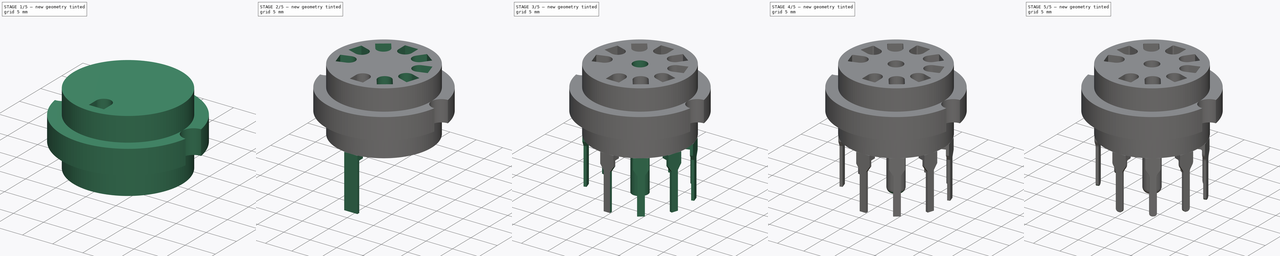
[diagram: build sequence overview — one tinted view per stage of 5, left to right]
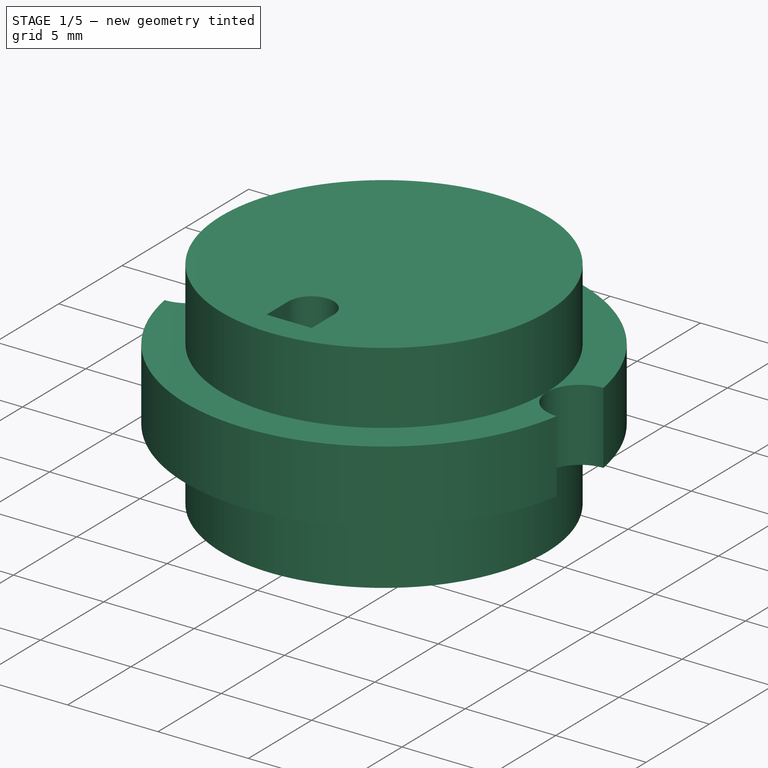
[diagram: stage 1 of 5 — iso view after this stage's code; geometry added in this stage tinted green]
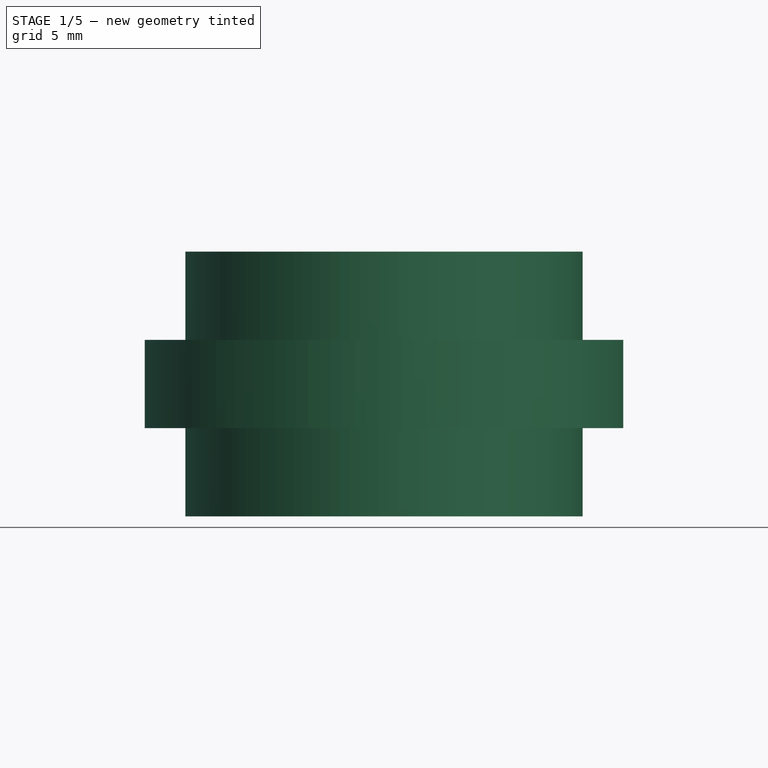
[diagram: stage 1 of 5 — front view after this stage's code; geometry added in this stage tinted green]
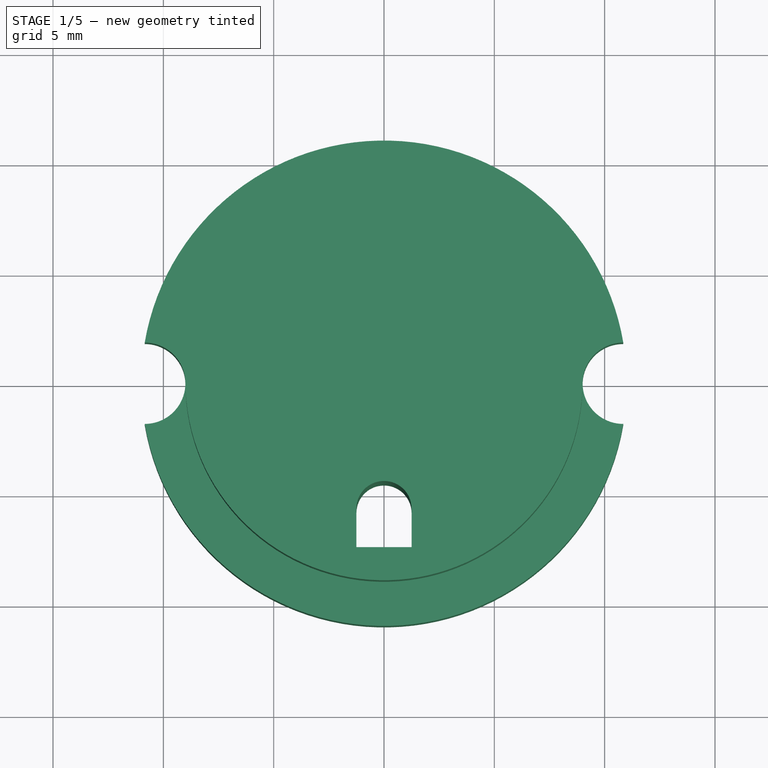
[diagram: stage 1 of 5 — top view after this stage's code; geometry added in this stage tinted green]
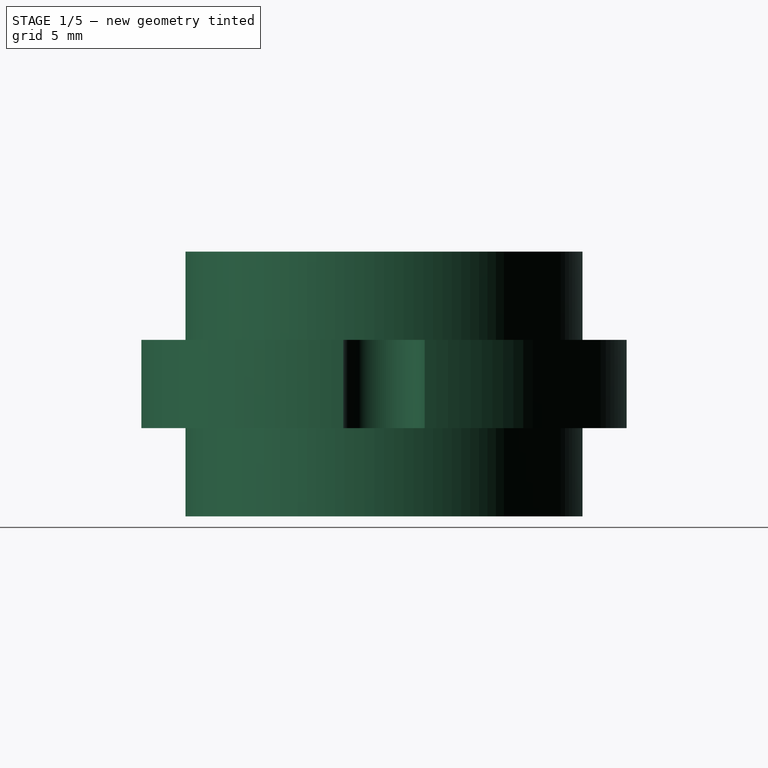
[diagram: stage 1 of 5 — right view after this stage's code; geometry added in this stage tinted green]
FCSTD DOCUMENT  (FreeCAD 0.19R)
Label: PL9-3P
License: All rights reserved
LicenseURL: http://en.wikipedia.org/wiki/All_rights_reserved
objects: Sketcher::SketchObject×9, PartDesign::Fillet×6, PartDesign::Pad×5, PartDesign::Pocket×4, PartDesign::PolarPattern×2, PartDesign::Body×2, PartDesign::Boolean×1
note: 44 computed .brp shape members not serialized (recipe doc carries the construction recipe); baked Part::Feature solids carry a one-line shape summary decoded from their .brp

FEATURE [Sketcher::SketchObject] Sketch
  FullyConstrained = true
  MapMode = 5
  Support = -> [XY_Plane]
  sketch-geometry (5):
    g0: Circle CenterX=0 CenterY=0 CenterZ=0 NormalX=0 NormalY=0 NormalZ=1 AngleXU=0 Radius=9
    g1: ArcOfCircle CenterX=-10.8443 CenterY=0 CenterZ=0 NormalX=0 NormalY=0 NormalZ=1 AngleXU=0 Radius=1.84429 StartAngle=4.71239 EndAngle=7.85398
    g2: ArcOfCircle CenterX=10.8443 CenterY=0 CenterZ=0 NormalX=0 NormalY=0 NormalZ=1 AngleXU=0 Radius=1.84429 StartAngle=1.5708 EndAngle=4.71239
    g3: ArcOfCircle CenterX=0 CenterY=0 CenterZ=0 NormalX=0 NormalY=0 NormalZ=1 AngleXU=0 Radius=11 StartAngle=0.168458 EndAngle=2.97313
    g4: ArcOfCircle CenterX=0 CenterY=0 CenterZ=0 NormalX=0 NormalY=0 NormalZ=1 AngleXU=0 Radius=11 StartAngle=3.31005 EndAngle=6.11473
  constraints (16):
    c: PointOnObject(g1,g-1)
    c: PointOnObject(g2,g-1)
    c: Coincident(g3,g-1)
    c: Coincident(g4,g3)
    c: Coincident(g4,g1)
    c: Coincident(g4,g2)
    c: Coincident(g2,g3)
    c: Coincident(g1,g3)
    c: Tangent(g0,g1)
    c: Tangent(g2,g0)
    c: Coincident(g0,g3)
    c: Diameter(g0) = 18
    c: Diameter(g3) = 22
    c: Equal(g3,g4)
    c: Vertical(g1,g1)
    c: Vertical(g2,g2)
FEATURE [PartDesign::Pad] Pad
  Direction = (1,1,1)
  Length = 4
  Length2 = 100
  Profile = -> Sketch
  Type = 0
FEATURE [Sketcher::SketchObject] Sketch001
  FullyConstrained = true
  MapMode = 5
  Placement = pos=(0,0,4) rot=(0,0,1;0rad)
  Support = -> [Pad]
  sketch-geometry (1):
    g0: Circle CenterX=0 CenterY=0 CenterZ=0 NormalX=0 NormalY=0 NormalZ=1 AngleXU=0 Radius=9
  constraints (2):
    c: Coincident(g0,g-1)
    c: Diameter(g0) = 18
FEATURE [PartDesign::Pad] Pad001
  BaseFeature = -> Pad
  Direction = (1,1,1)
  Length = 4
  Length2 = 100
  Profile = -> Sketch001
  Type = 0
FEATURE [Sketcher::SketchObject] Sketch002
  FullyConstrained = true
  MapMode = 5
  Placement = pos=(0,0,0) rot=(1,0,0;3.14159rad)
  Support = -> [Pad001]
  sketch-geometry (1):
    g0: Circle CenterX=0 CenterY=0 CenterZ=0 NormalX=0 NormalY=0 NormalZ=1 AngleXU=0 Radius=9
  constraints (2):
    c: Coincident(g0,g-1)
    c: Diameter(g0) = 18
FEATURE [PartDesign::Pad] Pad002
  BaseFeature = -> Pad001
  Direction = (1,1,1)
  Length = 4
  Length2 = 100
  Profile = -> Sketch002
  Type = 0
FEATURE [Sketcher::SketchObject] Sketch003
  FullyConstrained = true
  MapMode = 5
  Placement = pos=(0,0,8) rot=(0,0,1;0rad)
  Support = -> [Pad002]
  sketch-geometry (5):
    g0: ArcOfCircle CenterX=0 CenterY=-5.75 CenterZ=0 NormalX=0 NormalY=0 NormalZ=1 AngleXU=0 Radius=1.25 StartAngle=6.28319 EndAngle=9.42478
    g1: LineSegment StartX=-1.25 StartY=-5.75 StartZ=0 EndX=-1.25 EndY=-7.5 EndZ=0
    g2: LineSegment StartX=-1.25 StartY=-7.5 StartZ=0 EndX=1.25 EndY=-7.5 EndZ=0
    g3: LineSegment StartX=1.25 StartY=-7.5 StartZ=0 EndX=1.25 EndY=-5.75 EndZ=0
    g4: GeomPoint X=0 Y=-4.5 Z=0
  constraints (14):
    c: PointOnObject(g0,g-2)
    c: Vertical(g1)
    c: Coincident(g1,g2)
    c: Coincident(g2,g3)
    c: Vertical(g3)
    c: Symmetric(g2,g1,g-2)
    c: Coincident(g3,g0)
    c: Coincident(g1,g0)
    c: Horizontal(g0,g0)
    c: PointOnObject(g4,g-2)
    c: PointOnObject(g4,g0)
    c: DistanceX(g2,g2) = 2.5
    c: DistanceY(g2,g4) = 3
    c: DistanceY(g2,g-1) = 7.5
FEATURE [PartDesign::Pocket] Pocket
  BaseFeature = -> Pad002
  Length = 5
  Length2 = 100
  Profile = -> Sketch003
  Refine = true
  Type = 1
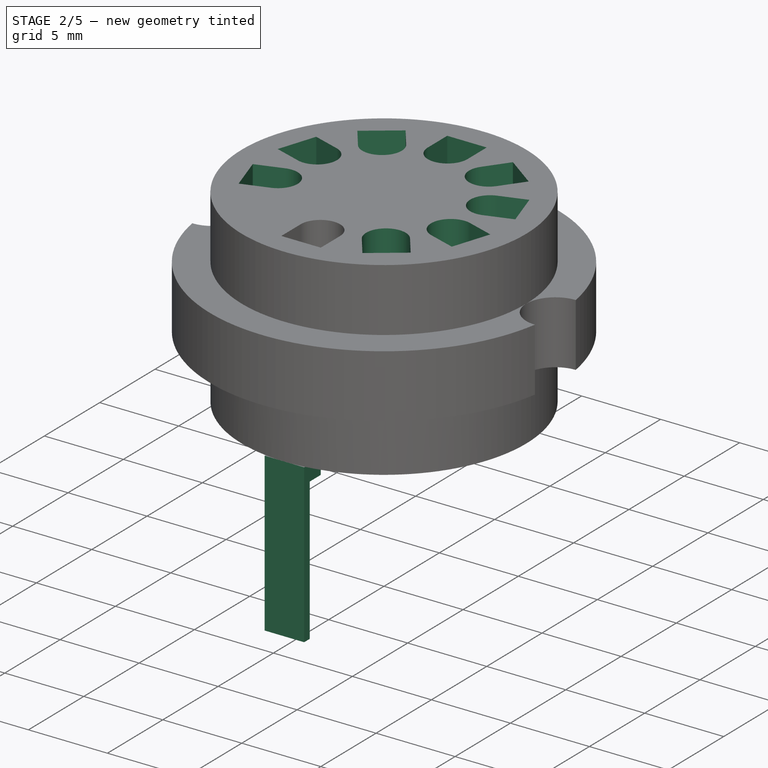
[diagram: stage 2 of 5 — iso view after this stage's code; geometry added in this stage tinted green]
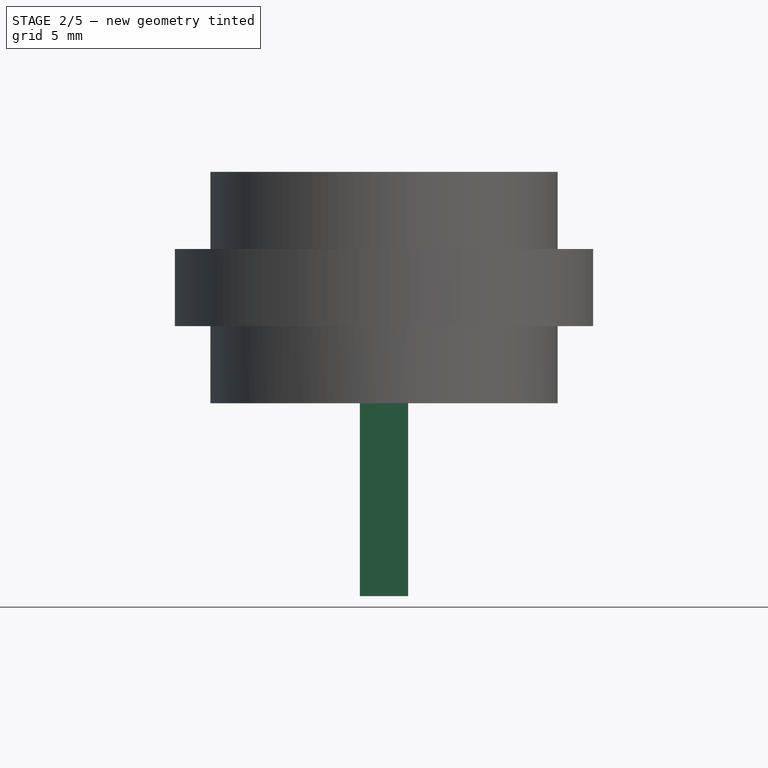
[diagram: stage 2 of 5 — front view after this stage's code; geometry added in this stage tinted green]
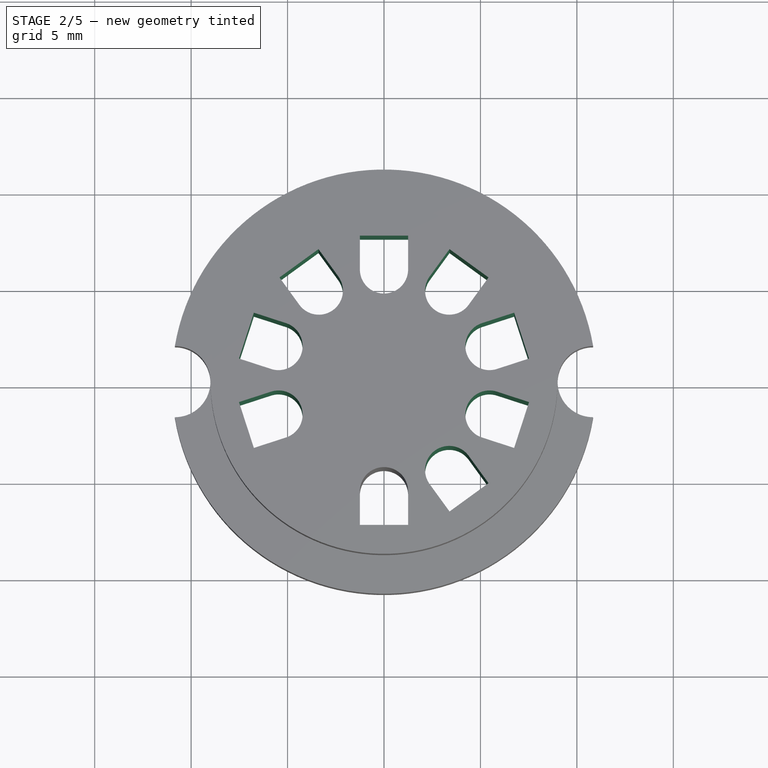
[diagram: stage 2 of 5 — top view after this stage's code; geometry added in this stage tinted green]
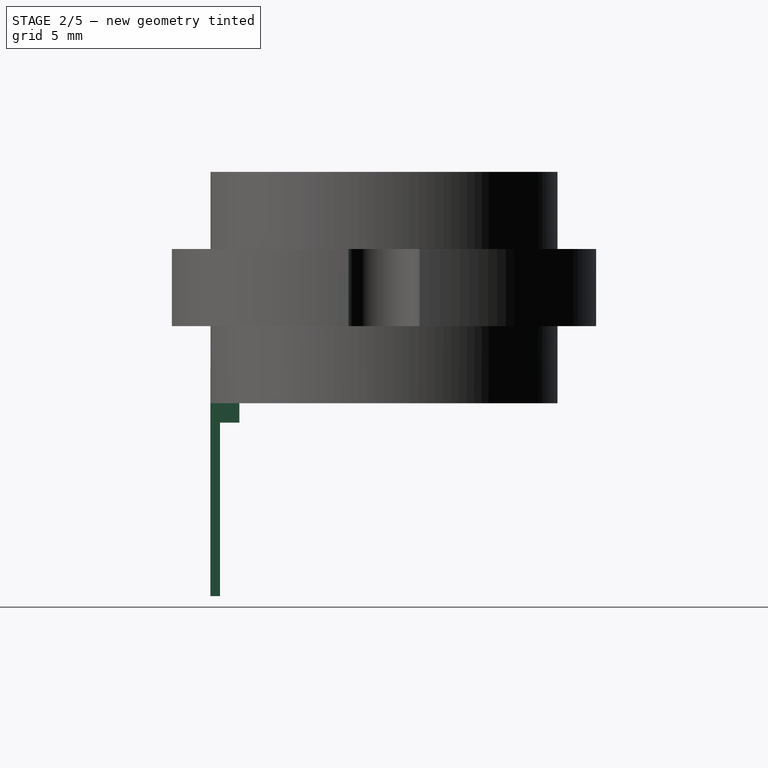
[diagram: stage 2 of 5 — right view after this stage's code; geometry added in this stage tinted green]
FEATURE [PartDesign::PolarPattern] PolarPattern
  Angle = 288
  Axis = -> Sketch003 [N_Axis]
  BaseFeature = -> Pocket
  Occurrences = 9
  Originals = -> [Pocket]
FEATURE [Sketcher::SketchObject] Sketch004
  FullyConstrained = true
  MapMode = 5
  Placement = pos=(0,0,-4) rot=(1,0,0;3.14159rad)
  Support = -> [PolarPattern]
  sketch-geometry (4):
    g0: LineSegment StartX=-1.25 StartY=9 StartZ=0 EndX=1.25 EndY=9 EndZ=0
    g1: LineSegment StartX=1.25 StartY=9 StartZ=0 EndX=1.25 EndY=7.5 EndZ=0
    g2: LineSegment StartX=1.25 StartY=7.5 StartZ=0 EndX=-1.25 EndY=7.5 EndZ=0
    g3: LineSegment StartX=-1.25 StartY=7.5 StartZ=0 EndX=-1.25 EndY=9 EndZ=0
  constraints (11):
    c: Coincident(g0,g1)
    c: Coincident(g1,g2)
    c: Coincident(g2,g3)
    c: Coincident(g3,g0)
    c: Horizontal(g0)
    c: Vertical(g1)
    c: Vertical(g3)
    c: Symmetric(g2,g1,g-2)
    c: DistanceX(g0,g0) = 2.5
    c: DistanceY(g-1,g1) = 7.5
    c: DistanceY(g-1,g0) = 9
FEATURE [PartDesign::Pad] Pad003
  BaseFeature = -> PolarPattern
  Direction = (1,1,1)
  Length = 10
  Length2 = 100
  Profile = -> Sketch004
  Type = 0
FEATURE [Sketcher::SketchObject] Sketch005
  FullyConstrained = true
  MapMode = 5
  Placement = pos=(-1.25,0,0) rot=(0.57735,-0.57735,-0.57735;2.0944rad)
  Support = -> [Pad003]
  sketch-geometry (4):
    g0: LineSegment StartX=7.5 StartY=-5 StartZ=0 EndX=8.5 EndY=-5 EndZ=0
    g1: LineSegment StartX=8.5 StartY=-5 StartZ=0 EndX=8.5 EndY=-14 EndZ=0
    g2: LineSegment StartX=8.5 StartY=-14 StartZ=0 EndX=7.5 EndY=-14 EndZ=0
    g3: LineSegment StartX=7.5 StartY=-14 StartZ=0 EndX=7.5 EndY=-5 EndZ=0
  constraints (12):
    c: Coincident(g0,g1)
    c: Coincident(g1,g2)
    c: Coincident(g2,g3)
    c: Coincident(g3,g0)
    c: Horizontal(g0)
    c: Horizontal(g2)
    c: Vertical(g1)
    c: Vertical(g3)
    c: DistanceY(g2,g-1) = 14
    c: DistanceY(g1,g1) = 9
    c: DistanceX(g-1,g0) = 7.5
    c: DistanceX(g-1,g0) = 8.5
FEATURE [PartDesign::Pocket] Pocket001
  BaseFeature = -> Pad003
  Length = 5
  Length2 = 100
  Profile = -> Sketch005
  Type = 0
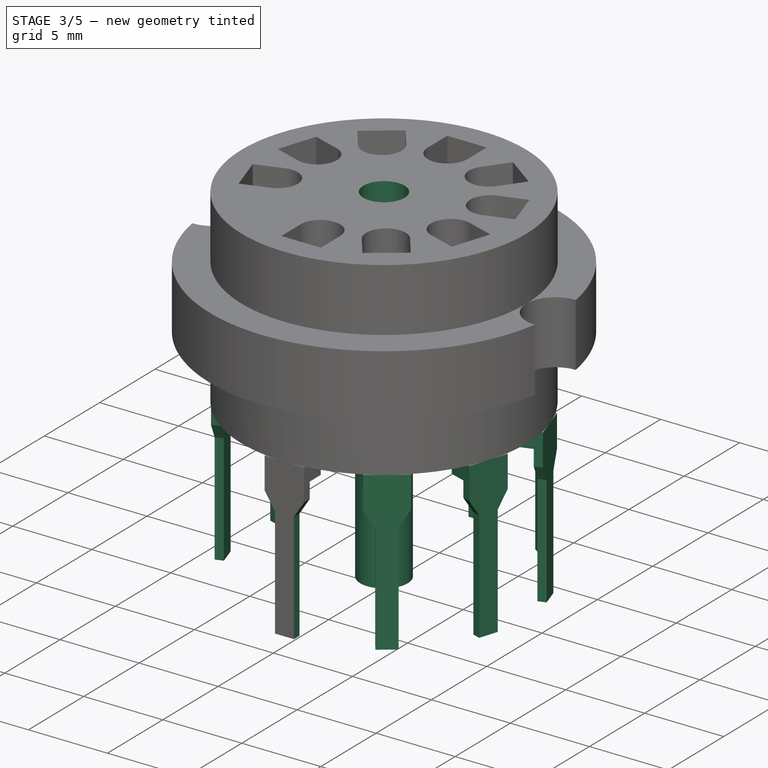
[diagram: stage 3 of 5 — iso view after this stage's code; geometry added in this stage tinted green]
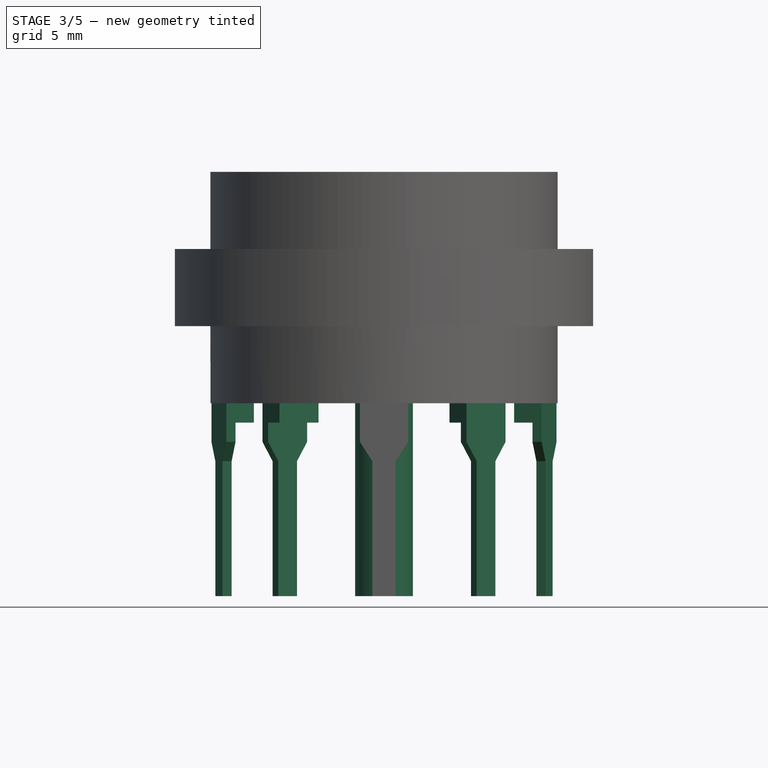
[diagram: stage 3 of 5 — front view after this stage's code; geometry added in this stage tinted green]
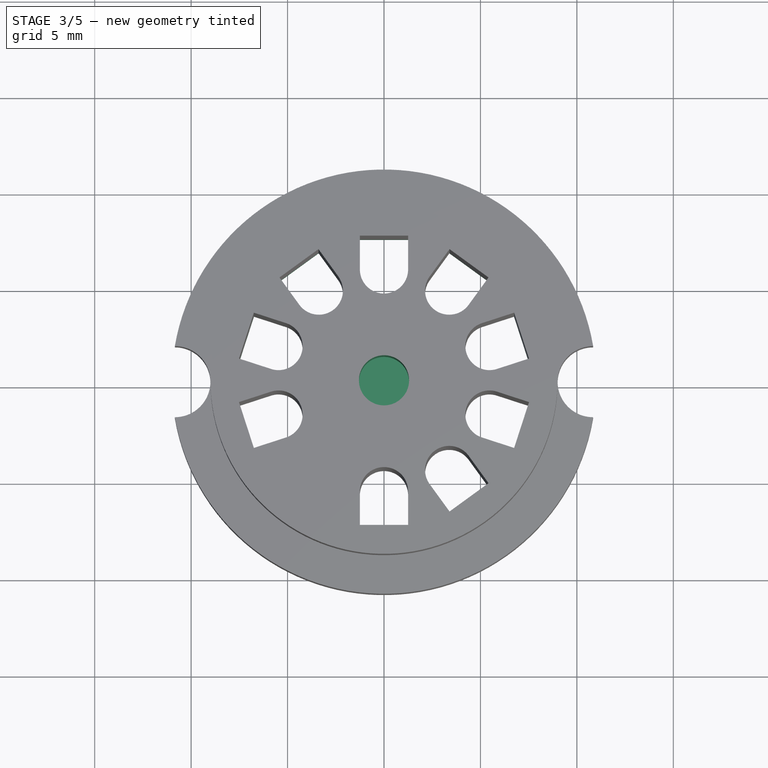
[diagram: stage 3 of 5 — top view after this stage's code; geometry added in this stage tinted green]
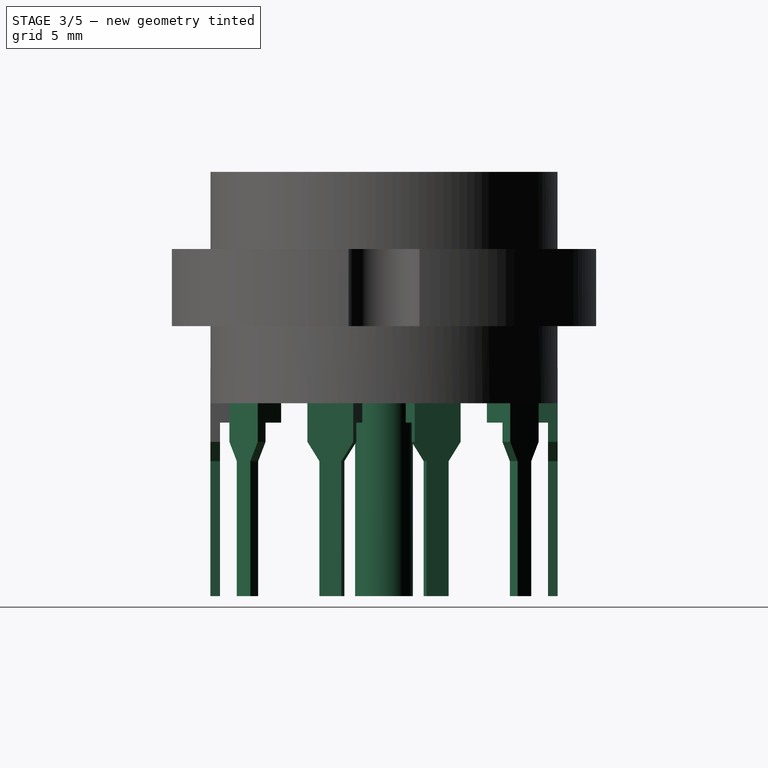
[diagram: stage 3 of 5 — right view after this stage's code; geometry added in this stage tinted green]
FEATURE [Sketcher::SketchObject] Sketch006
  FullyConstrained = true
  MapMode = 5
  Placement = pos=(0,-9,0) rot=(1,0,0;1.5708rad)
  Support = -> [Pocket001]
  sketch-geometry (8):
    g0: LineSegment StartX=-0.6 StartY=-14 StartZ=0 EndX=-0.6 EndY=-7 EndZ=0
    g1: LineSegment StartX=-0.6 StartY=-7 StartZ=0 EndX=-1.25 EndY=-6 EndZ=0
    g2: LineSegment StartX=-1.25 StartY=-6 StartZ=0 EndX=-1.25 EndY=-14 EndZ=0
    g3: LineSegment StartX=-1.25 StartY=-14 StartZ=0 EndX=-0.6 EndY=-14 EndZ=0
    g4: LineSegment StartX=0.6 StartY=-14 StartZ=0 EndX=0.6 EndY=-7 EndZ=0
    g5: LineSegment StartX=0.6 StartY=-7 StartZ=0 EndX=1.25 EndY=-6 EndZ=0
    g6: LineSegment StartX=1.25 StartY=-6 StartZ=0 EndX=1.25 EndY=-14 EndZ=0
    g7: LineSegment StartX=1.25 StartY=-14 StartZ=0 EndX=0.6 EndY=-14 EndZ=0
  constraints (22):
    c: Vertical(g0)
    c: Coincident(g0,g1)
    c: Coincident(g1,g2)
    c: Vertical(g2)
    c: Coincident(g2,g3)
    c: Coincident(g3,g0)
    c: Vertical(g4)
    c: Coincident(g4,g5)
    c: Coincident(g5,g6)
    c: Vertical(g6)
    c: Coincident(g6,g7)
    c: Coincident(g7,g4)
    c: Horizontal(g7)
    c: Horizontal(g3)
    c: Symmetric(g0,g4,g-2)
    c: Symmetric(g1,g5,g-2)
    c: Equal(g0,g4)
    c: DistanceX(g0,g4) = 1.2
    c: DistanceX(g2,g6) = 2.5
    c: DistanceY(g2,g-1) = 14
    c: DistanceY(g1,g-1) = 6
    c: DistanceY(g0,g1) = 1
FEATURE [PartDesign::Pocket] Pocket002
  BaseFeature = -> Pocket001
  Length = 5
  Length2 = 100
  Profile = -> Sketch006
  Type = 0
FEATURE [PartDesign::PolarPattern] PolarPattern001
  Angle = 288
  Axis = -> Sketch004 [N_Axis]
  BaseFeature = -> Pocket002
  Occurrences = 9
  Originals = -> [Pad003,Pocket001,Pocket002]
  Reversed = true
FEATURE [Sketcher::SketchObject] Sketch007
  FullyConstrained = true
  MapMode = 5
  Placement = pos=(0,0,-4) rot=(1,0,0;3.14159rad)
  Support = -> [PolarPattern001]
  sketch-geometry (1):
    g0: Circle CenterX=0 CenterY=0 CenterZ=0 NormalX=0 NormalY=0 NormalZ=1 AngleXU=0 Radius=1.5
  constraints (2):
    c: Coincident(g0,g-1)
    c: Diameter(g0) = 3
FEATURE [PartDesign::Pad] Pad004
  BaseFeature = -> PolarPattern001
  Direction = (1,1,1)
  Length = 10
  Length2 = 100
  Profile = -> Sketch007
  Type = 0
FEATURE [Sketcher::SketchObject] Sketch008
  FullyConstrained = true
  MapMode = 5
  Placement = pos=(0,0,8) rot=(0,0,1;0rad)
  Support = -> [Pad004]
  sketch-geometry (1):
    g0: Circle CenterX=0 CenterY=0 CenterZ=0 NormalX=0 NormalY=0 NormalZ=1 AngleXU=0 Radius=1.3
  constraints (2):
    c: Coincident(g0,g-1)
    c: Diameter(g0) = 2.6
FEATURE [PartDesign::Pocket] Pocket003
  BaseFeature = -> Pad004
  Length = 5
  Length2 = 100
  Profile = -> Sketch008
  Type = 0
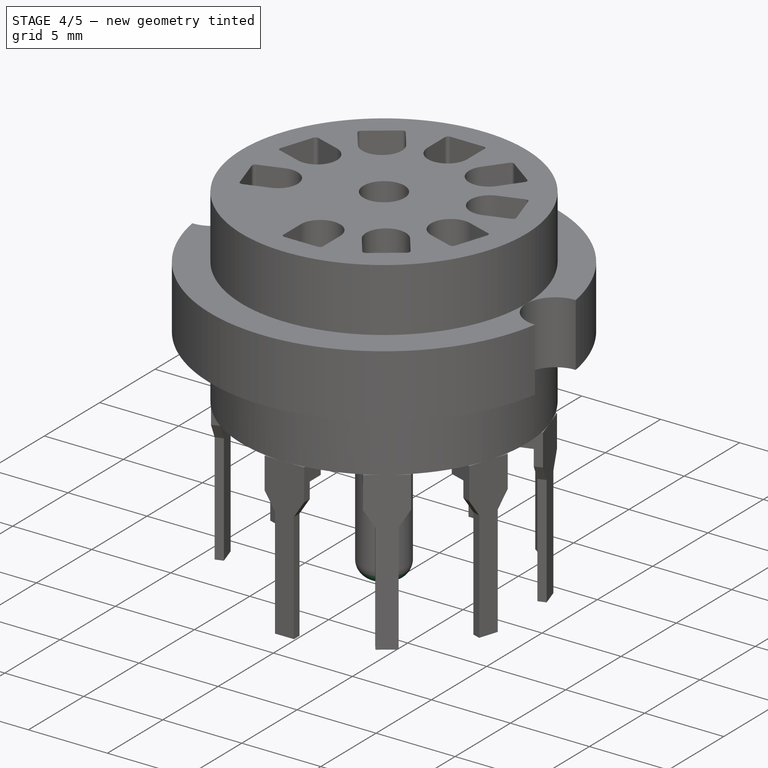
[diagram: stage 4 of 5 — iso view after this stage's code; geometry added in this stage tinted green]
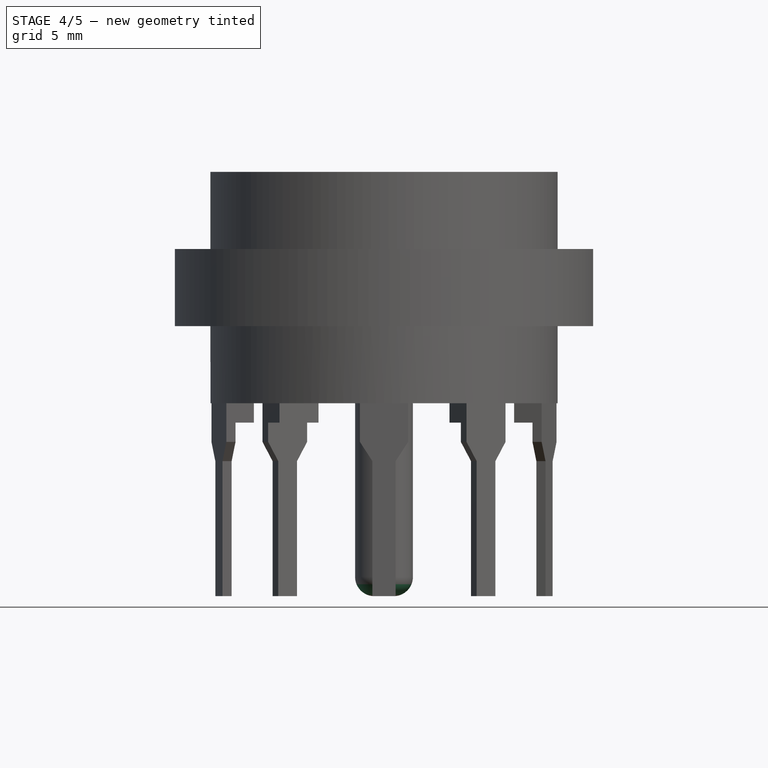
[diagram: stage 4 of 5 — front view after this stage's code; geometry added in this stage tinted green]
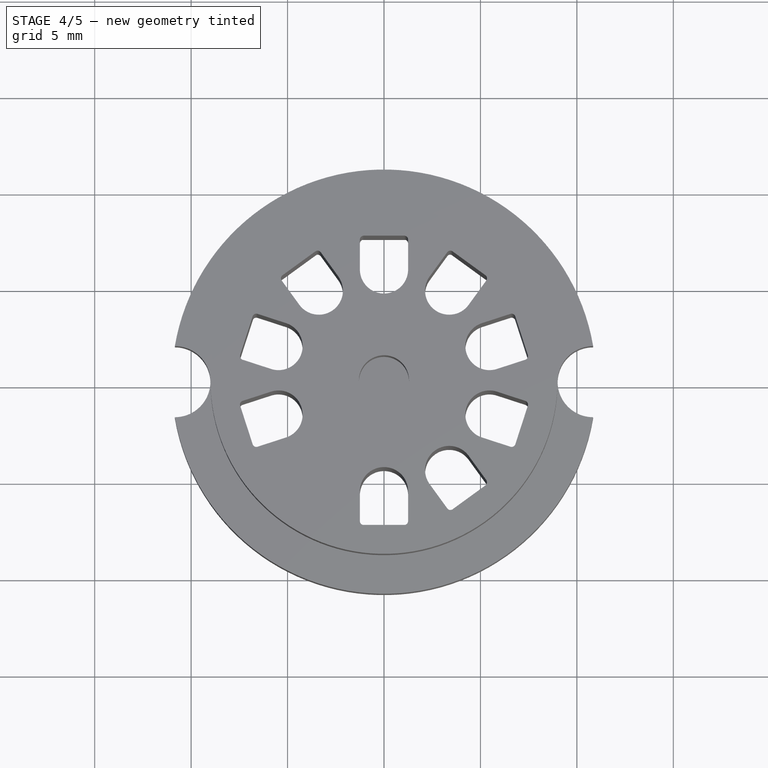
[diagram: stage 4 of 5 — top view after this stage's code; geometry added in this stage tinted green]
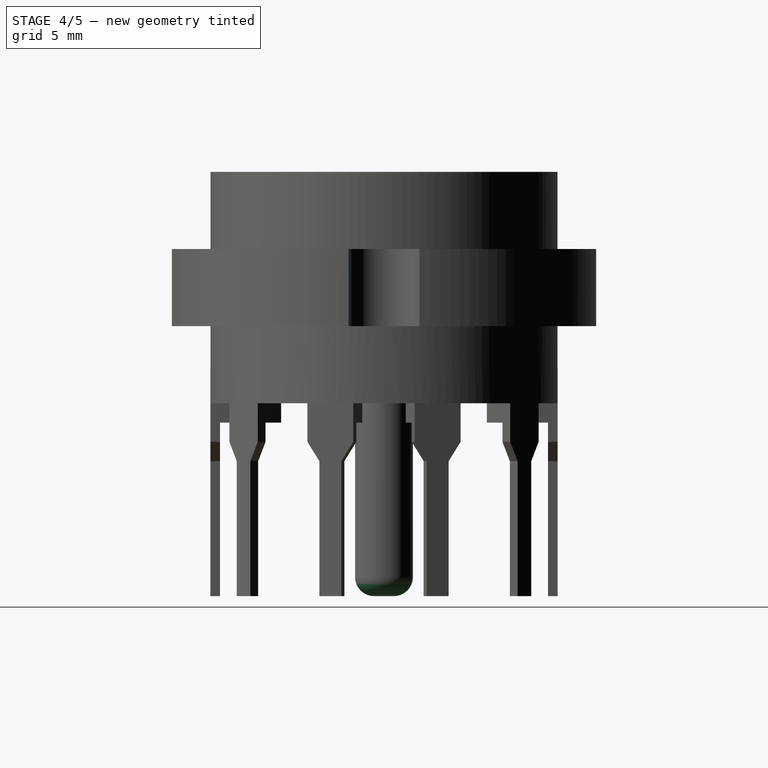
[diagram: stage 4 of 5 — right view after this stage's code; geometry added in this stage tinted green]
FEATURE [PartDesign::Body] Body
  Group = -> [Sketch,Pad,Sketch001,Pad001,Sketch002,Pad002,Sketch003,Pocket,PolarPattern,Sketch004,Pad003,Sketch005,Pocket001,Sketch006,Pocket002,PolarPattern001,Sketch007,Pad004,Sketch008,Pocket003]
  Origin = -> Origin
  Tip = -> Pocket003
FEATURE [PartDesign::Boolean] Boolean
  Group = -> [Body]
  Refine = true
  Type = 0
FEATURE [PartDesign::Fillet] Fillet
  Base = -> Boolean [Edge207,Edge199,Edge179,Edge171,Edge191,Edge198,Edge219,Edge226,Edge247,Edge249,Edge270,Edge277,Edge296,Edge288,Edge268,Edge260,Edge227,Edge235]
  BaseFeature = -> Boolean
  Radius = 0.2
  SupportTransform = false
FEATURE [PartDesign::Fillet] Fillet001
  Base = -> Fillet [Edge340]
  BaseFeature = -> Fillet
  Radius = 1
  SupportTransform = false
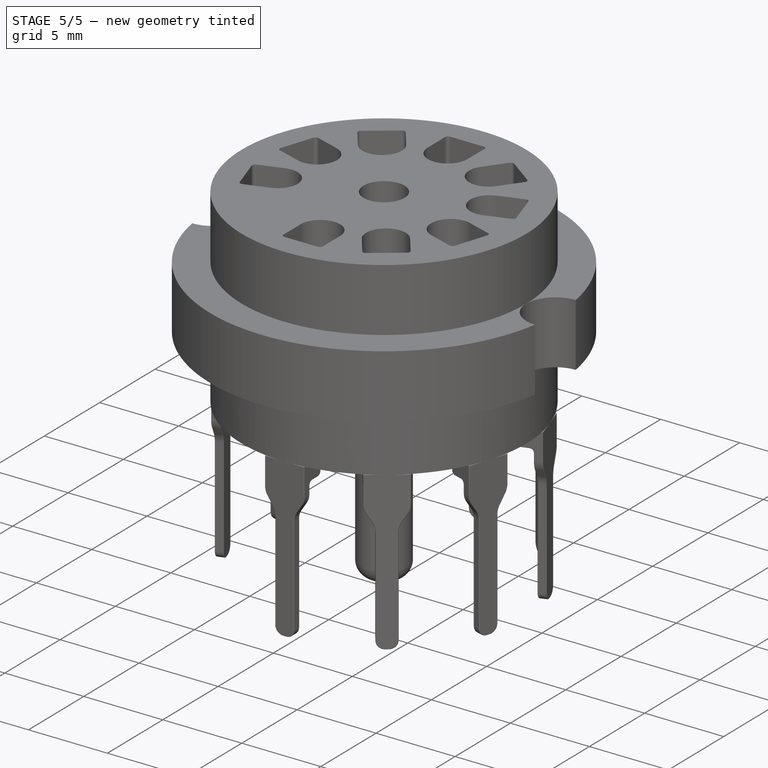
[diagram: stage 5 of 5 — iso view after this stage's code; geometry added in this stage tinted green]
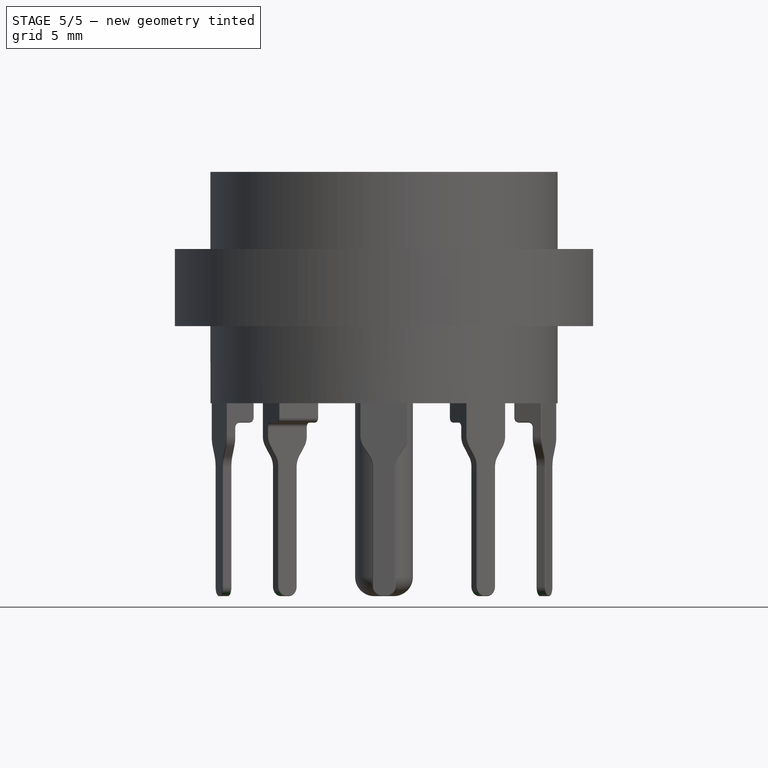
[diagram: stage 5 of 5 — front view after this stage's code; geometry added in this stage tinted green]
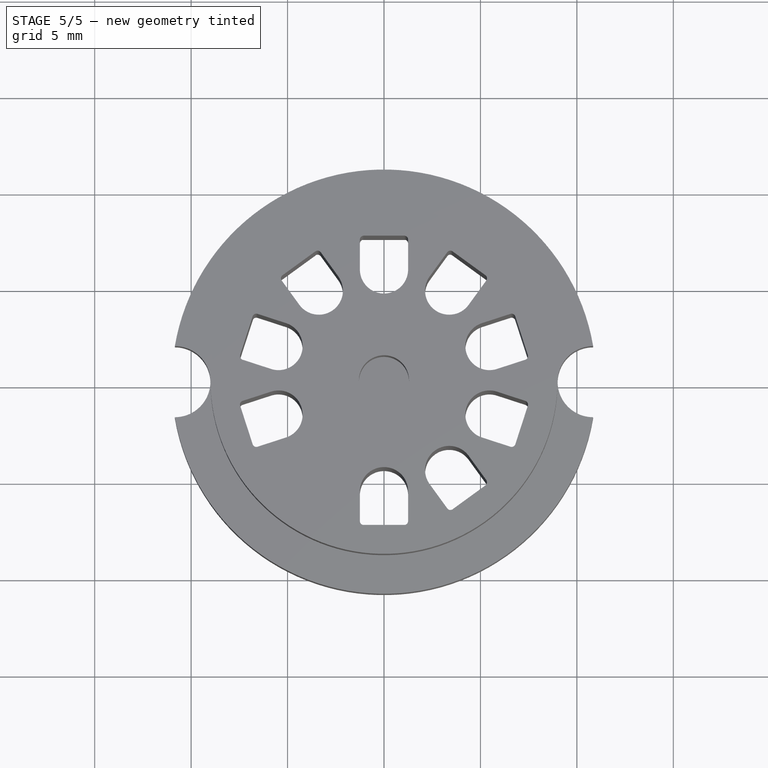
[diagram: stage 5 of 5 — top view after this stage's code; geometry added in this stage tinted green]
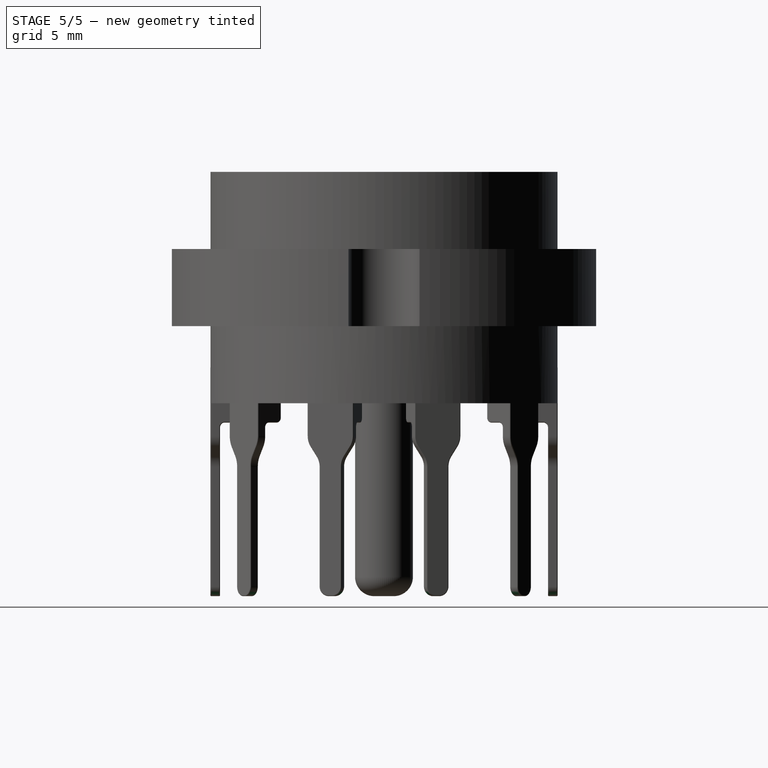
[diagram: stage 5 of 5 — right view after this stage's code; geometry added in this stage tinted green]
FEATURE [PartDesign::Fillet] Fillet002
  Base = -> Fillet001 [Edge492,Edge491,Edge506,Edge505,Edge510,Edge509,Edge514,Edge513,Edge504,Edge503,Edge508,Edge507,Edge512,Edge511,Edge516,Edge515,Edge517,Edge518]
  BaseFeature = -> Fillet001
  Radius = 0.5
  SupportTransform = false
FEATURE [PartDesign::Fillet] Fillet003
  Base = -> Fillet002 [Edge172,Edge388,Edge133,Edge39,Edge187,Edge417,Edge421,Edge222,Edge451,Edge237,Edge485,Edge289,Edge519,Edge339,Edge489,Edge317,Edge455,Edge272]
  BaseFeature = -> Fillet002
  Radius = 0.25
  SupportTransform = false
FEATURE [PartDesign::Fillet] Fillet004
  Base = -> Fillet003 [Edge247,Edge467,Edge220,Edge448,Edge132,Edge403,Edge131,Edge9,Edge459,Edge228,Edge486,Edge266,Edge497,Edge274,Edge524,Edge312,Edge535,Edge321,Edge562,Edge362,Edge573,Edge367,Edge396,Edge582,Edge581,Edge384,Edge351,Edge561,Edge543,Edge338,Edge523,Edge305,Edge293,Edge505,Edge259,Edge485]
  BaseFeature = -> Fillet003
  Radius = 1
  SupportTransform = false
FEATURE [PartDesign::Fillet] Fillet005
  Base = -> Fillet004 [Edge231,Edge237,Edge226,Edge227,Edge289,Edge295,Edge602,Edge617,Edge410,Edge405,Edge590,Edge578,Edge536,Edge524,Edge21,Edge30,Edge488,Edge466]
  BaseFeature = -> Fillet004
  Radius = 0.05
  SupportTransform = false
FEATURE [PartDesign::Body] Body001
  Group = -> [Boolean,Fillet,Fillet001,Fillet002,Fillet003,Fillet004,Fillet005]
  Origin = -> Origin001
  Tip = -> Fillet005
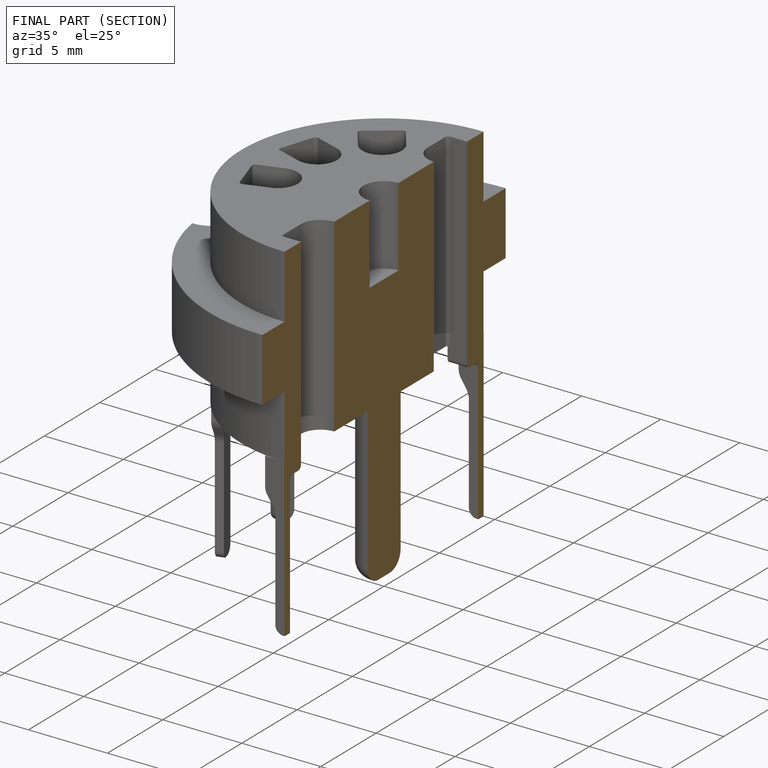
[diagram: finished part — half-section view (interior)]
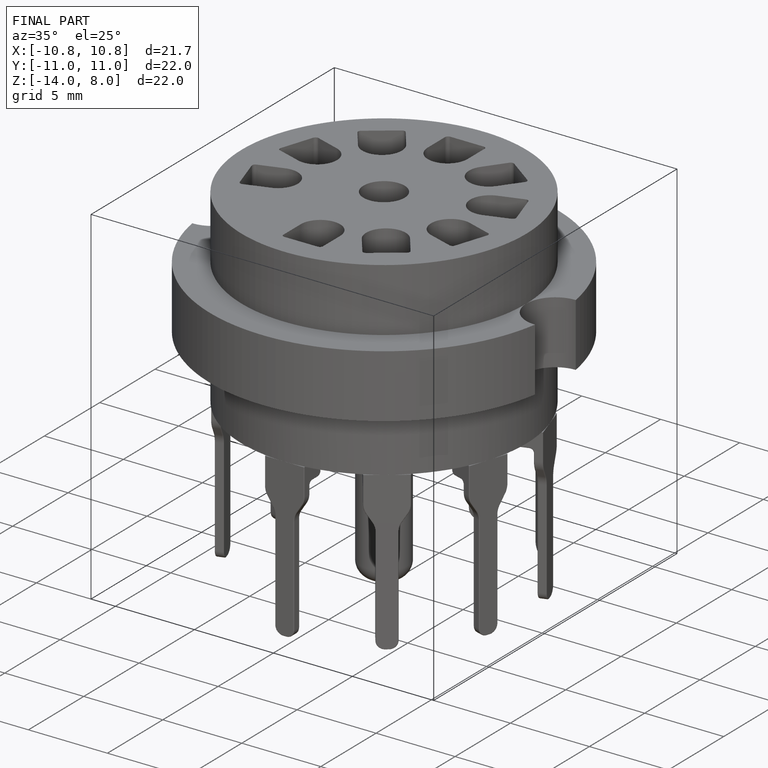
[diagram: finished part — iso view with bounding-box wireframe]
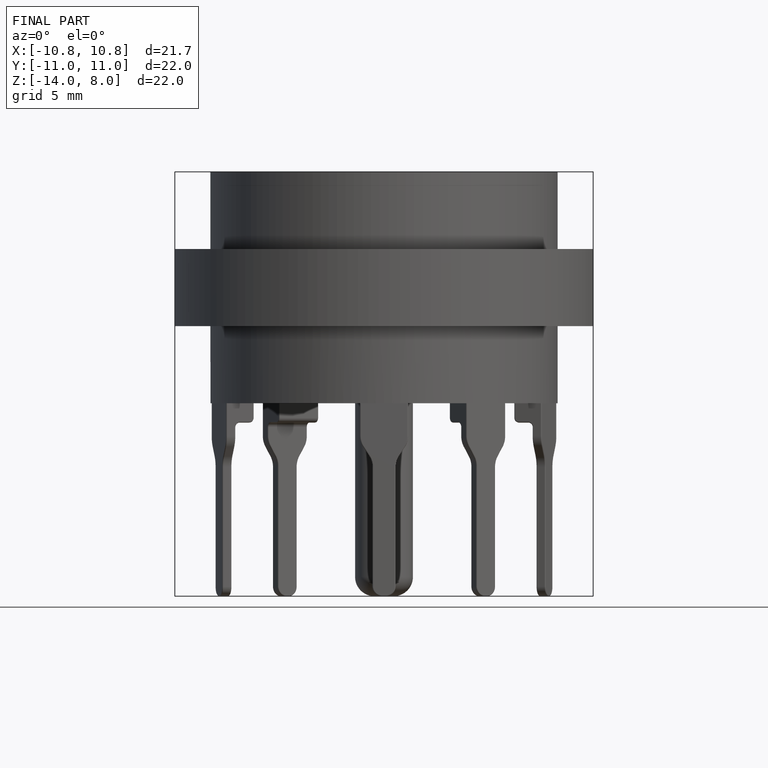
[diagram: finished part — front view with bounding-box wireframe]
